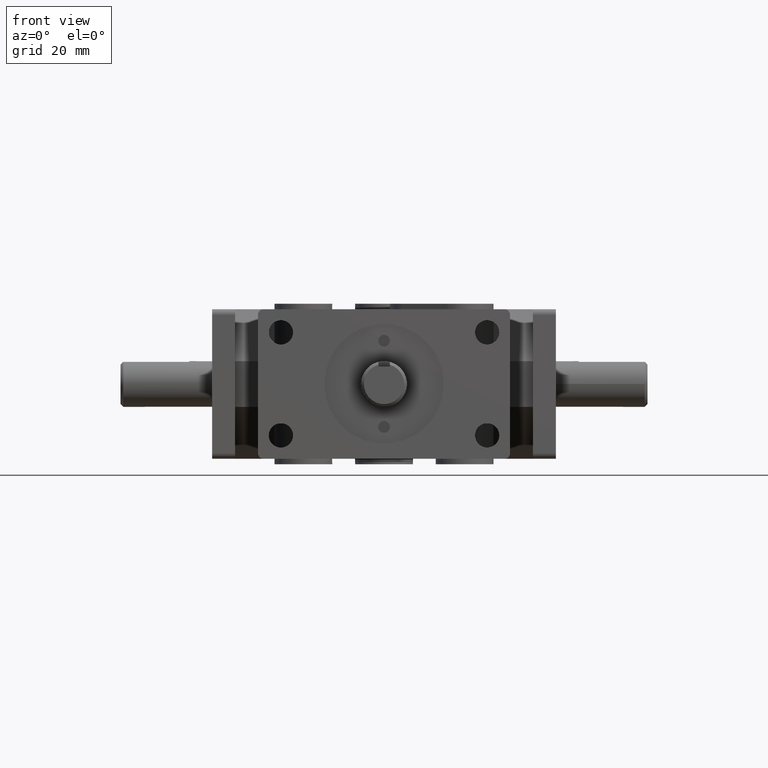
[diagram: clean part render]
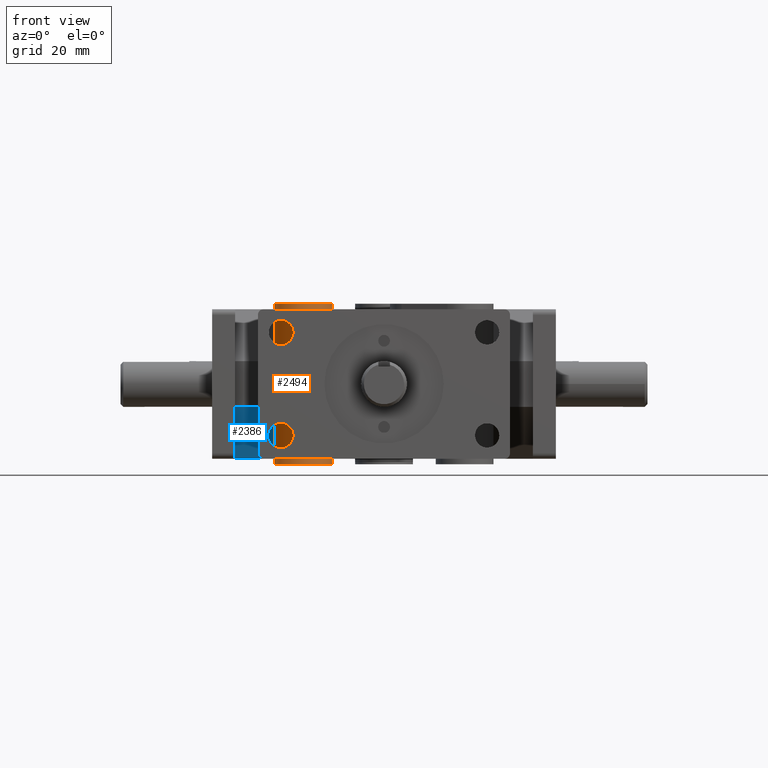
[diagram: same view with the hole feature highlighted: cylindrical wall and planar end face, labeled with their STEP entity ids]
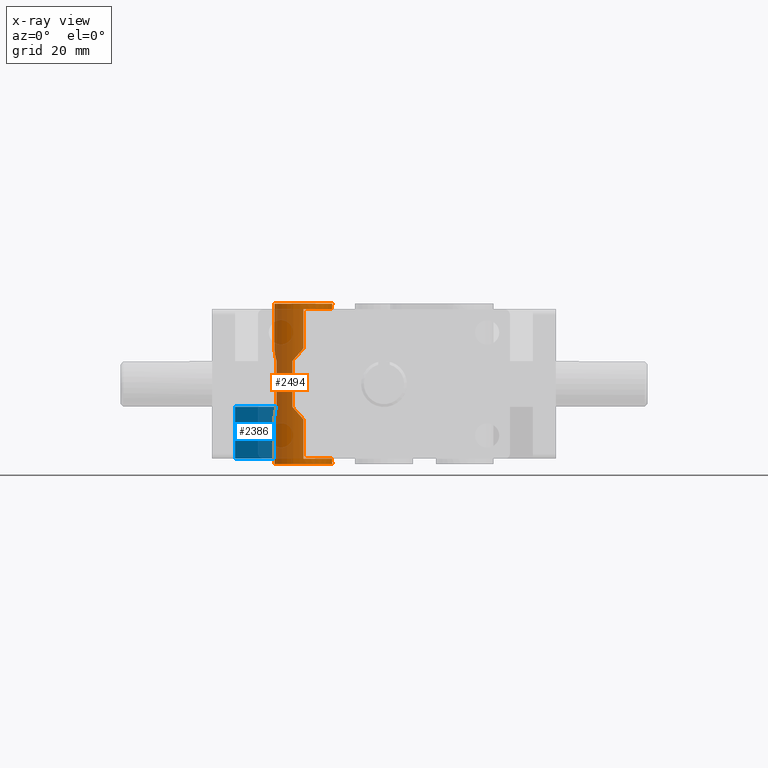
[diagram: x-ray of the same camera — body ghosted, the hole faces saturated]
A machine part, front view. The highlighted faces form one hole feature of diameter 16.002 mm: the cylindrical wall (entity #2494, orange) and its adjacent planar end face (entity #2386, blue) — they share a circular edge in the B-rep.
The next image is the same camera in x-ray (body ghosted, the hole faces saturated) — the bore reads through the body.
Wall:
#106=CYLINDRICAL_SURFACE('',#2751,0.315);
#114=CIRCLE('',#2530,0.315);
#120=CIRCLE('',#2542,0.315);
#209=CIRCLE('',#2752,0.315);
#210=CIRCLE('',#2753,0.315);
#336=FACE_OUTER_BOUND('',#511,.T.);
#511=EDGE_LOOP('',(#2195,#2196,#2197,#2198,#2199,#2200,#2201,#2202,#2203,
#2204,#2205,#2206,#2207,#2208,#2209,#2210,#2211,#2212));
#534=ELLIPSE('',#2535,0.475316107974472,0.315);
#538=ELLIPSE('',#2550,0.475316107974472,0.315);
#542=ELLIPSE('',#2559,0.475316107974472,0.315);
#543=ELLIPSE('',#2561,0.475316107974472,0.315);
#696=LINE('',#4001,#924);
#699=LINE('',#4006,#927);
#750=LINE('',#4171,#978);
#751=LINE('',#4173,#979);
#752=LINE('',#4175,#980);
#753=LINE('',#4177,#981);
#754=LINE('',#4181,#982);
#755=LINE('',#4183,#983);
#924=VECTOR('',#3236,1.);
#927=VECTOR('',#3243,1.);
#978=VECTOR('',#3430,1.);
#979=VECTOR('',#3433,1.);
#980=VECTOR('',#3436,1.);
#981=VECTOR('',#3439,1.);
#982=VECTOR('',#3444,0.315);
#983=VECTOR('',#3445,0.315);
#1023=VERTEX_POINT('',#3562);
#1024=VERTEX_POINT('',#3564);
#1038=VERTEX_POINT('',#3594);
#1040=VERTEX_POINT('',#3598);
#1058=VERTEX_POINT('',#3640);
#1059=VERTEX_POINT('',#3642);
#1081=VERTEX_POINT('',#3695);
#1082=VERTEX_POINT('',#3697);
#1093=VERTEX_POINT('',#3730);
#1094=VERTEX_POINT('',#3731);
#1096=VERTEX_POINT('',#3738);
#1098=VERTEX_POINT('',#3742);
#1217=VERTEX_POINT('',#4179);
#1218=VERTEX_POINT('',#4182);
#1257=EDGE_CURVE('',#1023,#1024,#114,.T.);
#1275=EDGE_CURVE('',#1038,#1040,#534,.T.);
#1296=EDGE_CURVE('',#1058,#1059,#120,.T.);
#1324=EDGE_CURVE('',#1082,#1081,#538,.T.);
#1341=EDGE_CURVE('',#1093,#1094,#542,.T.);
#1348=EDGE_CURVE('',#1096,#1098,#543,.T.);
#1473=EDGE_CURVE('',#1093,#1098,#696,.T.);
#1476=EDGE_CURVE('',#1082,#1040,#699,.T.);
#1551=EDGE_CURVE('',#1024,#1094,#750,.T.);
#1552=EDGE_CURVE('',#1096,#1058,#751,.T.);
#1553=EDGE_CURVE('',#1038,#1023,#752,.T.);
#1554=EDGE_CURVE('',#1059,#1081,#753,.T.);
#1555=EDGE_CURVE('',#1217,#1217,#209,.T.);
#1556=EDGE_CURVE('',#1217,#1023,#754,.T.);
#1557=EDGE_CURVE('',#1059,#1218,#755,.T.);
#1558=EDGE_CURVE('',#1218,#1218,#210,.T.);
#2195=ORIENTED_EDGE('',*,*,#1555,.T.);
#2196=ORIENTED_EDGE('',*,*,#1556,.T.);
#2197=ORIENTED_EDGE('',*,*,#1553,.F.);
#2198=ORIENTED_EDGE('',*,*,#1275,.T.);
#2199=ORIENTED_EDGE('',*,*,#1476,.F.);
#2200=ORIENTED_EDGE('',*,*,#1324,.T.);
#2201=ORIENTED_EDGE('',*,*,#1554,.F.);
#2202=ORIENTED_EDGE('',*,*,#1557,.T.);
#2203=ORIENTED_EDGE('',*,*,#1558,.T.);
#2204=ORIENTED_EDGE('',*,*,#1557,.F.);
#2205=ORIENTED_EDGE('',*,*,#1296,.F.);
#2206=ORIENTED_EDGE('',*,*,#1552,.F.);
#2207=ORIENTED_EDGE('',*,*,#1348,.T.);
#2208=ORIENTED_EDGE('',*,*,#1473,.F.);
#2209=ORIENTED_EDGE('',*,*,#1341,.T.);
#2210=ORIENTED_EDGE('',*,*,#1551,.F.);
#2211=ORIENTED_EDGE('',*,*,#1257,.F.);
#2212=ORIENTED_EDGE('',*,*,#1556,.F.);
#2494=ADVANCED_FACE('',(#336),#106,.T.);
#2530=AXIS2_PLACEMENT_3D('',#3565,#2810,#2811);
#2535=AXIS2_PLACEMENT_3D('',#3600,#2834,#2835);
#2542=AXIS2_PLACEMENT_3D('',#3643,#2865,#2866);
#2550=AXIS2_PLACEMENT_3D('',#3698,#2905,#2906);
#2559=AXIS2_PLACEMENT_3D('',#3732,#2936,#2937);
#2561=AXIS2_PLACEMENT_3D('',#3744,#2946,#2947);
#2751=AXIS2_PLACEMENT_3D('',#4178,#3440,#3441);
#2752=AXIS2_PLACEMENT_3D('',#4180,#3442,#3443);
#2753=AXIS2_PLACEMENT_3D('',#4184,#3446,#3447);
#2810=DIRECTION('center_axis',(0.,0.,-1.));
#2811=DIRECTION('ref_axis',(1.,0.,0.));
#2834=DIRECTION('center_axis',(0.,-0.748870055165724,0.662716862978517));
#2835=DIRECTION('ref_axis',(0.,0.662716862978517,0.748870055165724));
#2865=DIRECTION('center_axis',(0.,0.,1.));
#2866=DIRECTION('ref_axis',(1.,0.,0.));
#2905=DIRECTION('center_axis',(0.,-0.748870055165724,-0.662716862978517));
#2906=DIRECTION('ref_axis',(0.,0.662716862978517,-0.748870055165724));
#2936=DIRECTION('center_axis',(-0.748870055165724,0.,0.662716862978517));
#2937=DIRECTION('ref_axis',(0.662716862978517,0.,0.748870055165724));
#2946=DIRECTION('center_axis',(-0.748870055165724,0.,-0.662716862978517));
#2947=DIRECTION('ref_axis',(0.662716862978517,0.,-0.748870055165724));
#3236=DIRECTION('',(0.,0.,-1.));
#3243=DIRECTION('',(0.,0.,1.));
#3430=DIRECTION('',(0.,0.,-1.));
#3433=DIRECTION('',(0.,0.,-1.));
#3436=DIRECTION('',(0.,0.,1.));
#3439=DIRECTION('',(0.,0.,1.));
#3440=DIRECTION('center_axis',(0.,0.,1.));
#3441=DIRECTION('ref_axis',(1.,0.,0.));
#3442=DIRECTION('center_axis',(0.,0.,-1.));
#3443=DIRECTION('ref_axis',(1.,0.,0.));
#3444=DIRECTION('',(0.,0.,-1.));
#3445=DIRECTION('',(0.,0.,-1.));
#3446=DIRECTION('center_axis',(0.,0.,1.));
#3447=DIRECTION('ref_axis',(1.,0.,0.));
#3562=CARTESIAN_POINT('',(-1.195,1.995,0.815));
#3564=CARTESIAN_POINT('',(-0.88,1.68,0.815));
#3565=CARTESIAN_POINT('Origin',(-0.88,1.995,0.815));
#3594=CARTESIAN_POINT('',(-1.195,1.995,0.385600000000001));
#3598=CARTESIAN_POINT('',(-1.17124731758421,1.875,0.25));
#3600=CARTESIAN_POINT('Origin',(-0.88,1.995,0.3856));
#3640=CARTESIAN_POINT('',(-0.88,1.68,-0.815));
#3642=CARTESIAN_POINT('',(-1.195,1.995,-0.815));
#3643=CARTESIAN_POINT('Origin',(-0.88,1.995,-0.815));
#3695=CARTESIAN_POINT('',(-1.195,1.995,-0.385600000000001));
#3697=CARTESIAN_POINT('',(-1.17124731758421,1.875,-0.25));
#3698=CARTESIAN_POINT('Origin',(-0.88,1.995,-0.3856));
#3730=CARTESIAN_POINT('',(-1.,1.70375268241579,0.25));
#3731=CARTESIAN_POINT('',(-0.88,1.68,0.3856));
#3732=CARTESIAN_POINT('Origin',(-0.88,1.995,0.3856));
#3738=CARTESIAN_POINT('',(-0.88,1.68,-0.3856));
#3742=CARTESIAN_POINT('',(-1.,1.70375268241579,-0.25));
#3744=CARTESIAN_POINT('Origin',(-0.88,1.995,-0.3856));
#4001=CARTESIAN_POINT('',(-1.,1.70375268241579,0.));
#4006=CARTESIAN_POINT('',(-1.17124731758421,1.875,0.));
#4171=CARTESIAN_POINT('',(-0.88,1.68,0.));
#4173=CARTESIAN_POINT('',(-0.88,1.68,0.));
#4175=CARTESIAN_POINT('',(-1.195,1.995,0.));
#4177=CARTESIAN_POINT('',(-1.195,1.995,0.));
#4178=CARTESIAN_POINT('Origin',(-0.88,1.995,0.));
#4179=CARTESIAN_POINT('',(-1.195,1.995,0.875));
#4180=CARTESIAN_POINT('Origin',(-0.88,1.995,0.875));
#4181=CARTESIAN_POINT('',(-1.195,1.995,0.));
#4182=CARTESIAN_POINT('',(-1.195,1.995,-0.875));
#4183=CARTESIAN_POINT('',(-1.195,1.995,0.));
#4184=CARTESIAN_POINT('Origin',(-0.88,1.995,-0.875));
End face:
#228=FACE_OUTER_BOUND('',#363,.T.);
#363=EDGE_LOOP('',(#1684,#1685,#1686,#1687,#1688));
#538=ELLIPSE('',#2550,0.475316107974472,0.315);
#598=LINE('',#3647,#826);
#620=LINE('',#3696,#848);
#621=LINE('',#3700,#849);
#622=LINE('',#3701,#850);
#826=VECTOR('',#2868,1.);
#848=VECTOR('',#2904,1.);
#849=VECTOR('',#2907,1.);
#850=VECTOR('',#2908,1.);
#1060=VERTEX_POINT('',#3644);
#1061=VERTEX_POINT('',#3646);
#1081=VERTEX_POINT('',#3695);
#1082=VERTEX_POINT('',#3697);
#1083=VERTEX_POINT('',#3699);
#1298=EDGE_CURVE('',#1060,#1061,#598,.T.);
#1323=EDGE_CURVE('',#1081,#1060,#620,.T.);
#1324=EDGE_CURVE('',#1082,#1081,#538,.T.);
#1325=EDGE_CURVE('',#1083,#1082,#621,.T.);
#1326=EDGE_CURVE('',#1061,#1083,#622,.T.);
#1684=ORIENTED_EDGE('',*,*,#1323,.F.);
#1685=ORIENTED_EDGE('',*,*,#1324,.F.);
#1686=ORIENTED_EDGE('',*,*,#1325,.F.);
#1687=ORIENTED_EDGE('',*,*,#1326,.F.);
#1688=ORIENTED_EDGE('',*,*,#1298,.F.);
#2299=PLANE('',#2549);
#2386=ADVANCED_FACE('',(#228),#2299,.F.);
#2549=AXIS2_PLACEMENT_3D('',#3694,#2902,#2903);
#2550=AXIS2_PLACEMENT_3D('',#3698,#2905,#2906);
#2868=DIRECTION('',(-1.,0.,0.));
#2902=DIRECTION('center_axis',(0.,0.748870055165724,0.662716862978517));
#2903=DIRECTION('ref_axis',(0.,0.662716862978517,-0.748870055165724));
#2904=DIRECTION('',(0.,0.662716862978517,-0.748870055165724));
#2905=DIRECTION('center_axis',(0.,-0.748870055165724,-0.662716862978517));
#2906=DIRECTION('ref_axis',(0.,0.662716862978517,-0.748870055165724));
#2907=DIRECTION('',(1.,0.,0.));
#2908=DIRECTION('',(0.,-0.662716862978517,0.748870055165724));
#3644=CARTESIAN_POINT('',(-1.195,2.375,-0.815));
#3646=CARTESIAN_POINT('',(-1.625,2.375,-0.815));
#3647=CARTESIAN_POINT('',(0.8125,2.375,-0.815));
#3694=CARTESIAN_POINT('Origin',(1.625,2.375,-0.815));
#3695=CARTESIAN_POINT('',(-1.195,1.995,-0.385600000000001));
#3696=CARTESIAN_POINT('',(-1.195,2.30644187272168,-0.737529316175502));
#3697=CARTESIAN_POINT('',(-1.17124731758421,1.875,-0.25));
#3698=CARTESIAN_POINT('Origin',(-0.88,1.995,-0.3856));
#3699=CARTESIAN_POINT('',(-1.625,1.875,-0.25));
#3700=CARTESIAN_POINT('',(0.,1.875,-0.25));
#3701=CARTESIAN_POINT('',(-1.625,2.375,-0.815));